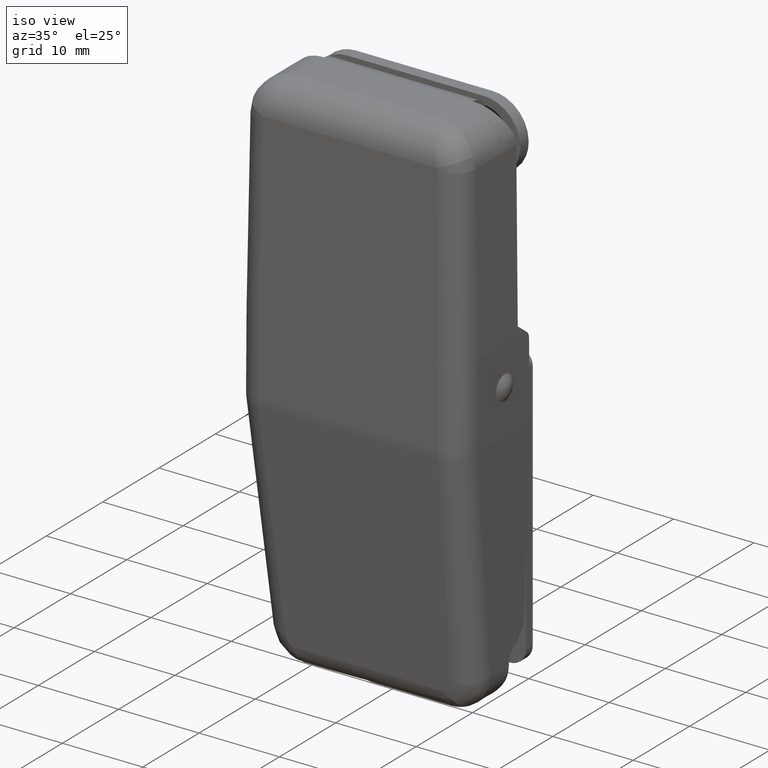
[diagram: clean part render]
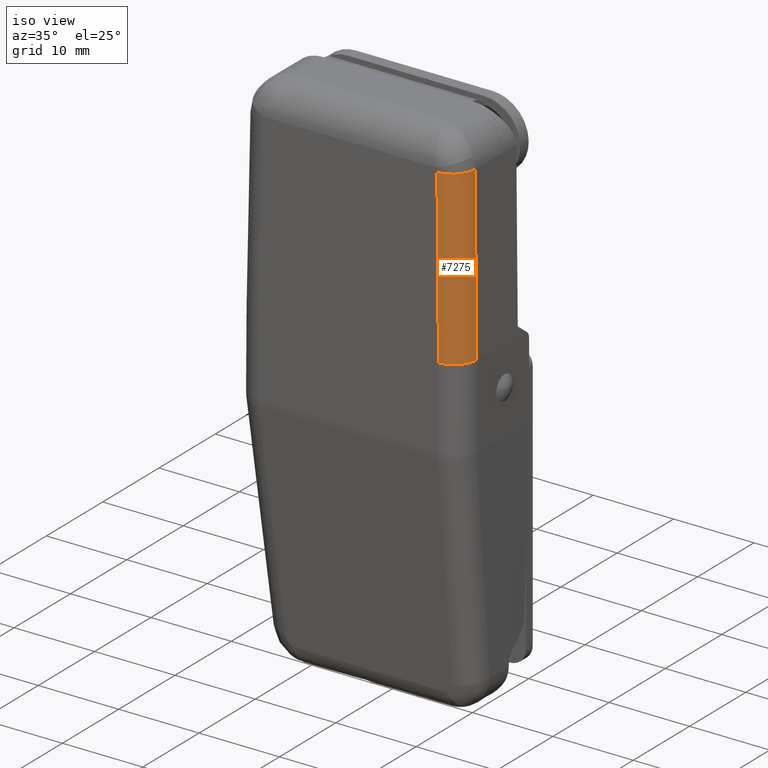
[diagram: same view with one face highlighted and labeled with its STEP entity id]
A machine part, iso view. The second image highlights one B-rep face of the part: STEP entity #7275.
In plain terms, the highlighted face is a freeform B-spline surface patch.
Its self-contained STEP definition (entity closure, byte-faithful):
#3608=CARTESIAN_POINT('',(11.199999999953461,-7.750622147044550,9.980213609420202));
#3609=VERTEX_POINT('',#3608);
#3610=CARTESIAN_POINT('',(10.865136016860740,-7.539414709708980,31.225917628357060));
#3611=VERTEX_POINT('',#3610);
#3612=CARTESIAN_POINT('',(11.199999999953461,-7.750622147044550,9.980213609420202));
#3613=CARTESIAN_POINT('',(10.865136016860740,-7.539414709708980,31.225917628357060));
#3614=QUASI_UNIFORM_CURVE('',1,(#3612,#3613),.UNSPECIFIED.,.F.,.U.);
#3615=EDGE_CURVE('',#3609,#3611,#3614,.T.);
#4150=CARTESIAN_POINT('',(13.999875810784760,-4.950901487583811,9.982323667152031));
#4151=VERTEX_POINT('',#4150);
#4152=CARTESIAN_POINT('',(11.199999999953461,-7.750622147044550,9.980213609420202));
#4153=CARTESIAN_POINT('',(11.429036875622311,-7.750638723929536,9.982663210957909));
#4154=CARTESIAN_POINT('',(11.932944917502260,-7.688453580847061,9.987434050161676));
#4155=CARTESIAN_POINT('',(12.596056880313959,-7.413753844396597,9.991794797281704));
#4156=CARTESIAN_POINT('',(13.118714302800409,-7.015968994197520,9.993429809686736));
#4157=CARTESIAN_POINT('',(13.519729315289720,-6.556876445814867,9.993154429932993));
#4158=CARTESIAN_POINT('',(13.786831943321729,-6.071686460112981,9.991187477148571));
#4159=CARTESIAN_POINT('',(13.960390227728251,-5.512034053469668,9.987479850403140));
#4160=CARTESIAN_POINT('',(13.999879280371720,-5.157041030939396,9.984373026839252));
#4161=CARTESIAN_POINT('',(13.999875810784760,-4.950901487583811,9.982323667152031));
#4162=B_SPLINE_CURVE_WITH_KNOTS('',3,(#4152,#4153,#4154,#4155,#4156,#4157,#4158,#4159,#4160,#4161),.UNSPECIFIED.,.F.,.U.,(4,1,1,1,1,1,1,4),(0.000000080984978,0.687163025494081,1.511770009360523,2.130226120206800,2.645578394453604,3.332743819886416,3.779402416954917,4.397846846520467),.UNSPECIFIED.);
#4163=EDGE_CURVE('',#3609,#4151,#4162,.T.);
#7070=CARTESIAN_POINT('',(13.664788287188440,-4.739553057429350,31.242210385976911));
#7071=VERTEX_POINT('',#7070);
#7072=CARTESIAN_POINT('',(10.865136016860740,-7.539414709708980,31.225917628357060));
#7073=CARTESIAN_POINT('',(11.082709322407130,-7.539430868131527,31.229347068794691));
#7074=CARTESIAN_POINT('',(11.449115516476869,-7.496363438754916,31.234694035696091));
#7075=CARTESIAN_POINT('',(12.061239581177990,-7.298318976181211,31.242373227634712));
#7076=CARTESIAN_POINT('',(12.587477527846950,-6.982862617086949,31.247531513073611));
#7077=CARTESIAN_POINT('',(13.010519988848079,-6.559597319742581,31.249991535330299));
#7078=CARTESIAN_POINT('',(13.281634344161411,-6.174666058740681,31.250438029722499));
#7079=CARTESIAN_POINT('',(13.490879486989870,-5.752632324930055,31.249540530567081));
#7080=CARTESIAN_POINT('',(13.631943785733020,-5.266340034602555,31.246929593530670));
#7081=CARTESIAN_POINT('',(13.664777720881579,-4.911330133746397,31.243917886833319));
#7082=CARTESIAN_POINT('',(13.664788287188440,-4.739553057429350,31.242210385976911));
#7083=B_SPLINE_CURVE_WITH_KNOTS('',3,(#7072,#7073,#7074,#7075,#7076,#7077,#7078,#7079,#7080,#7081,#7082),.UNSPECIFIED.,.F.,.U.,(4,1,1,1,1,1,1,1,4),(0.000000080990896,0.652790728659463,1.099455215945531,1.924046228618633,2.473769489772312,2.886060194551257,3.332722455169803,3.882460074594422,4.397818653907089),.UNSPECIFIED.);
#7084=EDGE_CURVE('',#3611,#7071,#7083,.T.);
#7251=CARTESIAN_POINT('',(10.783034030884719,-7.533171590641103,31.756243245899320));
#7252=CARTESIAN_POINT('',(11.135085360363099,-7.755219535072090,9.420074761933897));
#7253=CARTESIAN_POINT('',(13.865867327454600,-7.613904791181925,31.805635880210659));
#7254=CARTESIAN_POINT('',(14.217918656932982,-7.835952735612911,9.469467396245243));
#7255=CARTESIAN_POINT('',(13.649512869242242,-4.537404545036417,31.771641758484044));
#7256=CARTESIAN_POINT('',(14.001564198720617,-4.759452489467407,9.435473274518619));
#7264=(BOUNDED_SURFACE()B_SPLINE_SURFACE(1,2,((#7251,#7253,#7255),(#7252,#7254,#7256)),.UNSPECIFIED.,.F.,.F.,.U.)B_SPLINE_SURFACE_WITH_KNOTS((2,2),(3,3),(0.0,22.340046284023309),(0.0,4.959172553456170),.UNSPECIFIED.)GEOMETRIC_REPRESENTATION_ITEM()RATIONAL_B_SPLINE_SURFACE(((1.0,0.670945945262049,0.996389242170484),(1.0,0.670945945262049,0.996389242170484)))REPRESENTATION_ITEM('')SURFACE());
#7265=ORIENTED_EDGE('',*,*,#3615,.F.);
#7266=ORIENTED_EDGE('',*,*,#4163,.T.);
#7267=CARTESIAN_POINT('',(13.664788287188440,-4.739553057429350,31.242210385976911));
#7268=CARTESIAN_POINT('',(13.999875810784760,-4.950901487583811,9.982323667152031));
#7269=QUASI_UNIFORM_CURVE('',1,(#7267,#7268),.UNSPECIFIED.,.F.,.U.);
#7270=EDGE_CURVE('',#7071,#4151,#7269,.T.);
#7271=ORIENTED_EDGE('',*,*,#7270,.F.);
#7272=ORIENTED_EDGE('',*,*,#7084,.F.);
#7273=EDGE_LOOP('',(#7265,#7266,#7271,#7272));
#7274=FACE_OUTER_BOUND('',#7273,.T.);
#7275=ADVANCED_FACE('',(#7274),#7264,.T.);